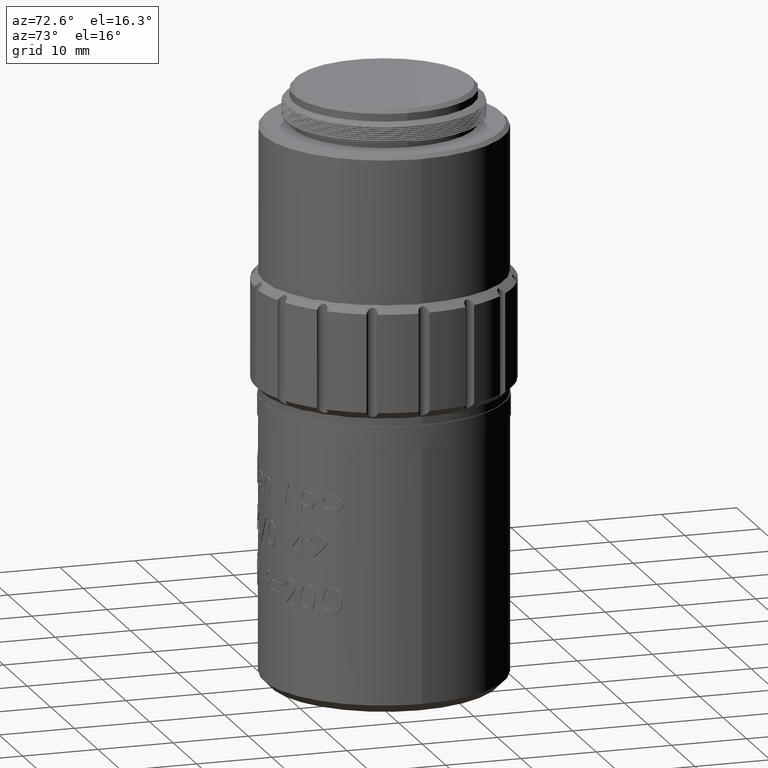
[diagram: clean part render]
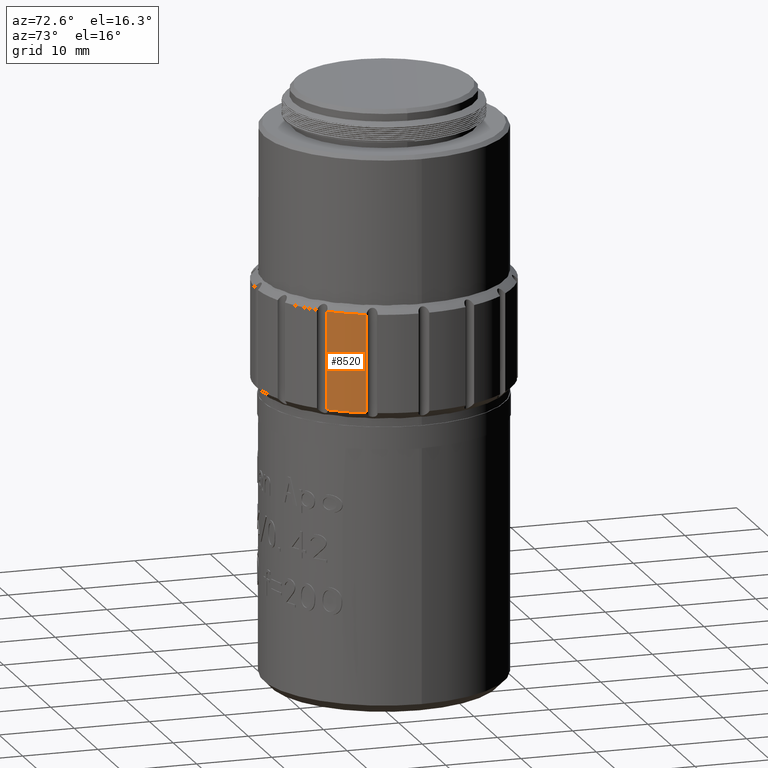
[diagram: same view with one face highlighted and labeled with its STEP entity id]
A machine part, auxiliary view. The second image highlights one B-rep face of the part: STEP entity #8520.
In plain terms, the highlighted cylindrical surface (partial cylindrical patch) has radius 17 mm, axis along (-0, -0, -1).
Its self-contained STEP definition (entity closure, byte-faithful):
#401 = DIRECTION ( 'NONE',  ( 0.000000000000000000, 0.000000000000000000, -1.000000000000000000 ) ) ;
#828 = DIRECTION ( 'NONE',  ( -1.000000000000000000, 0.000000000000000000, 0.000000000000000000 ) ) ;
#1688 = AXIS2_PLACEMENT_3D ( 'NONE', #1955, #8945, #10247 ) ;
#1955 = CARTESIAN_POINT ( 'NONE',  ( -122.6630341068842540, 22.01530283243863195, -6.499999999999999112 ) ) ;
#2032 = CARTESIAN_POINT ( 'NONE',  ( -110.1520451866487917, 10.50551759387985129, -6.499999999999999112 ) ) ;
#2113 = CYLINDRICAL_SURFACE ( 'NONE', #11227, 16.99999999999998579 ) ;
#2146 = EDGE_CURVE ( 'NONE', #15068, #2246, #18375, .T. ) ;
#2246 = VERTEX_POINT ( 'NONE', #4642 ) ;
#3467 = CARTESIAN_POINT ( 'NONE',  ( -110.1520451866487917, 10.50551759387984774, -5.050000000000006928 ) ) ;
#4642 = CARTESIAN_POINT ( 'NONE',  ( -107.2416309191019650, 14.86126035843428639, 6.500000000000000000 ) ) ;
#4645 = DIRECTION ( 'NONE',  ( -0.000000000000000000, -0.000000000000000000, -1.000000000000000000 ) ) ;
#5112 = DIRECTION ( 'NONE',  ( -0.000000000000000000, -0.000000000000000000, -1.000000000000000000 ) ) ;
#5277 = ORIENTED_EDGE ( 'NONE', *, *, #7175, .T. ) ;
#5636 = ORIENTED_EDGE ( 'NONE', *, *, #2146, .T. ) ;
#6550 = VECTOR ( 'NONE', #401, 1000.000000000000000 ) ;
#7175 = EDGE_CURVE ( 'NONE', #16772, #14540, #14625, .T. ) ;
#8520 = ADVANCED_FACE ( 'NONE', ( #10501 ), #2113, .T. ) ;
#8945 = DIRECTION ( 'NONE',  ( 0.000000000000000000, 0.000000000000000000, 1.000000000000000000 ) ) ;
#9722 = CIRCLE ( 'NONE', #1688, 17.00000000000000000 ) ;
#9764 = AXIS2_PLACEMENT_3D ( 'NONE', #11613, #5112, #828 ) ;
#10247 = DIRECTION ( 'NONE',  ( 1.000000000000000000, 0.000000000000000000, 0.000000000000000000 ) ) ;
#10391 = CARTESIAN_POINT ( 'NONE',  ( -107.2416309191019650, 14.86126035843428816, -6.499999999999999112 ) ) ;
#10501 = FACE_OUTER_BOUND ( 'NONE', #11776, .T. ) ;
#11227 = AXIS2_PLACEMENT_3D ( 'NONE', #14672, #4645, #17714 ) ;
#11613 = CARTESIAN_POINT ( 'NONE',  ( -122.6630341068842540, 22.01530283243863195, 6.500000000000000000 ) ) ;
#11679 = ORIENTED_EDGE ( 'NONE', *, *, #11987, .T. ) ;
#11776 = EDGE_LOOP ( 'NONE', ( #18098, #5277, #11679, #5636 ) ) ;
#11987 = EDGE_CURVE ( 'NONE', #14540, #15068, #9722, .T. ) ;
#12367 = CARTESIAN_POINT ( 'NONE',  ( -110.1520451866487917, 10.50551759387985129, 6.500000000000000000 ) ) ;
#12970 = EDGE_CURVE ( 'NONE', #2246, #16772, #17746, .T. ) ;
#14207 = CARTESIAN_POINT ( 'NONE',  ( -107.2416309191019650, 14.86126035843428639, -5.050000000000006928 ) ) ;
#14540 = VERTEX_POINT ( 'NONE', #2032 ) ;
#14625 = LINE ( 'NONE', #3467, #6550 ) ;
#14672 = CARTESIAN_POINT ( 'NONE',  ( -122.6630341068842540, 22.01530283243863195, -8.750073880203553145 ) ) ;
#14887 = VECTOR ( 'NONE', #15778, 1000.000000000000000 ) ;
#15068 = VERTEX_POINT ( 'NONE', #10391 ) ;
#15778 = DIRECTION ( 'NONE',  ( -0.000000000000000000, -0.000000000000000000, 1.000000000000000000 ) ) ;
#16772 = VERTEX_POINT ( 'NONE', #12367 ) ;
#17714 = DIRECTION ( 'NONE',  ( -1.000000000000000000, 0.000000000000000000, 0.000000000000000000 ) ) ;
#17746 = CIRCLE ( 'NONE', #9764, 16.99999999999998579 ) ;
#18098 = ORIENTED_EDGE ( 'NONE', *, *, #12970, .T. ) ;
#18375 = LINE ( 'NONE', #14207, #14887 ) ;